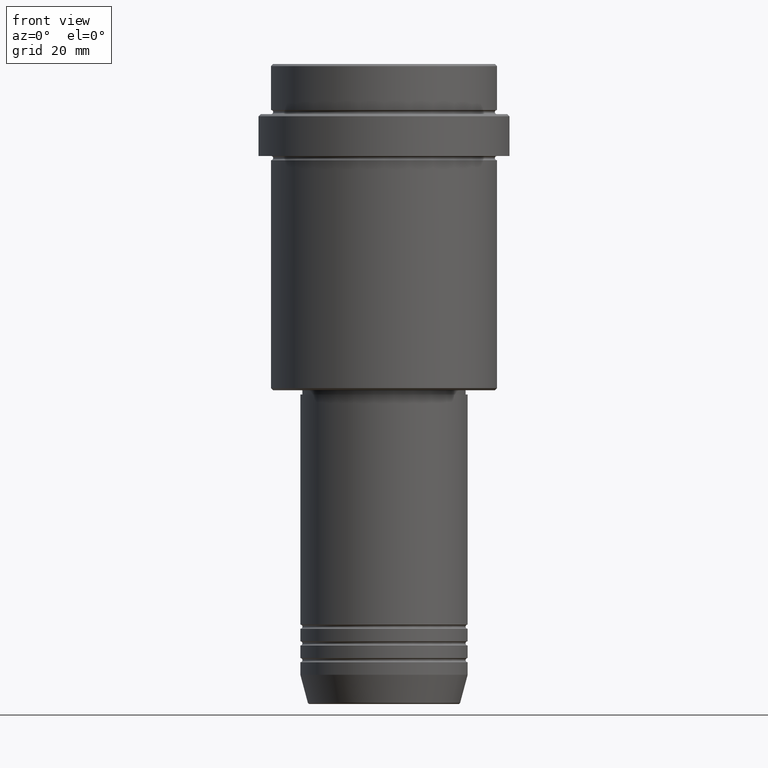
[diagram: clean part render]
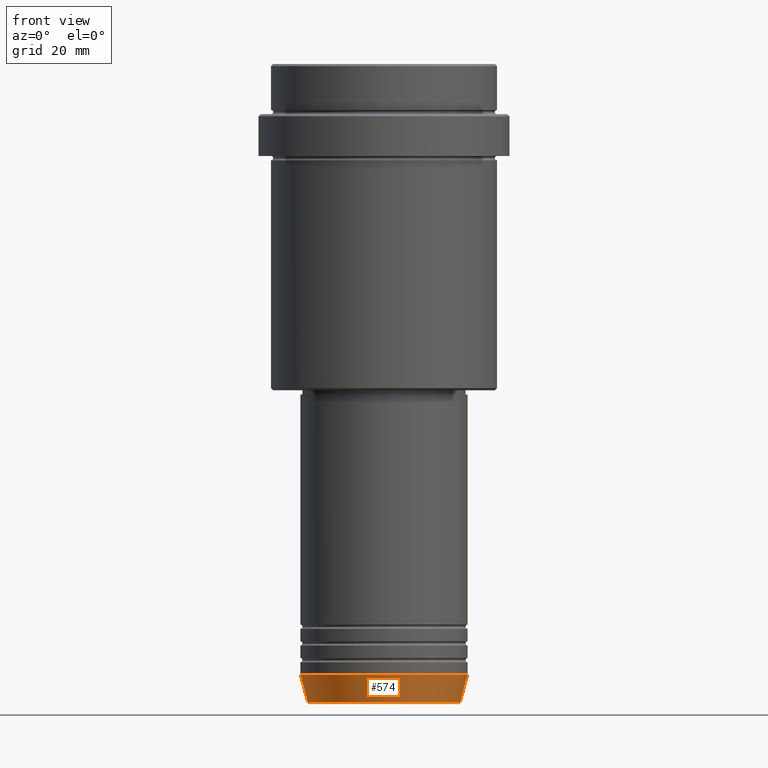
[diagram: same view with one face highlighted and labeled with its STEP entity id]
A machine part, front view. The second image highlights one B-rep face of the part: STEP entity #574.
In plain terms, the highlighted conical surface has half-angle 15 deg.
Its self-contained STEP definition (entity closure, byte-faithful):
#64 = DIRECTION ( 'NONE',  ( 1.000000000000000000, 0.000000000000000000, 0.000000000000000000 ) ) ;
#155 = DIRECTION ( 'NONE',  ( -0.2588190451025213501, 3.169619151431772337E-17, 0.9659258262890680902 ) ) ;
#261 = CIRCLE ( 'NONE', #1204, 20.00000000000000000 ) ;
#304 = CARTESIAN_POINT ( 'NONE',  ( 0.000000000000000000, 0.000000000000000000, -146.0000000000000000 ) ) ;
#392 = CIRCLE ( 'NONE', #778, 18.22365507213719482 ) ;
#403 = CARTESIAN_POINT ( 'NONE',  ( 0.000000000000000000, 0.000000000000000000, -152.6294095225512706 ) ) ;
#475 = CARTESIAN_POINT ( 'NONE',  ( 18.22365507213719482, 0.000000000000000000, -152.6294095225512706 ) ) ;
#509 = EDGE_CURVE ( 'NONE', #600, #802, #392, .T. ) ;
#516 = VECTOR ( 'NONE', #536, 1000.000000000000000 ) ;
#536 = DIRECTION ( 'NONE',  ( 0.2588190451025213501, 0.000000000000000000, 0.9659258262890680902 ) ) ;
#545 = CARTESIAN_POINT ( 'NONE',  ( 0.000000000000000000, 0.000000000000000000, -146.0000000000000000 ) ) ;
#549 = LINE ( 'NONE', #1212, #516 ) ;
#562 = VERTEX_POINT ( 'NONE', #850 ) ;
#574 = ADVANCED_FACE ( 'NONE', ( #953 ), #704, .T. ) ;
#600 = VERTEX_POINT ( 'NONE', #1060 ) ;
#646 = VERTEX_POINT ( 'NONE', #665 ) ;
#665 = CARTESIAN_POINT ( 'NONE',  ( 20.00000000000000000, 0.000000000000000000, -146.0000000000000000 ) ) ;
#699 = CARTESIAN_POINT ( 'NONE',  ( -20.00000000000000000, 2.449293598294706513E-15, -146.0000000000000000 ) ) ;
#700 = EDGE_CURVE ( 'NONE', #562, #646, #261, .T. ) ;
#704 = CONICAL_SURFACE ( 'NONE', #705, 20.00000000000000000, 0.2617993877991500740 ) ;
#705 = AXIS2_PLACEMENT_3D ( 'NONE', #304, #1281, #64 ) ;
#765 = EDGE_CURVE ( 'NONE', #600, #562, #1231, .T. ) ;
#769 = ORIENTED_EDGE ( 'NONE', *, *, #509, .T. ) ;
#778 = AXIS2_PLACEMENT_3D ( 'NONE', #403, #1041, #1300 ) ;
#802 = VERTEX_POINT ( 'NONE', #475 ) ;
#850 = CARTESIAN_POINT ( 'NONE',  ( -20.00000000000000000, 2.449293598294706513E-15, -146.0000000000000000 ) ) ;
#896 = DIRECTION ( 'NONE',  ( 1.000000000000000000, 0.000000000000000000, 0.000000000000000000 ) ) ;
#953 = FACE_OUTER_BOUND ( 'NONE', #1050, .T. ) ;
#1020 = ORIENTED_EDGE ( 'NONE', *, *, #1136, .T. ) ;
#1041 = DIRECTION ( 'NONE',  ( -0.000000000000000000, -0.000000000000000000, 1.000000000000000000 ) ) ;
#1050 = EDGE_LOOP ( 'NONE', ( #1146, #769, #1020, #1114 ) ) ;
#1060 = CARTESIAN_POINT ( 'NONE',  ( -18.22365507213719482, 2.340523841790264718E-15, -152.6294095225512706 ) ) ;
#1114 = ORIENTED_EDGE ( 'NONE', *, *, #700, .F. ) ;
#1136 = EDGE_CURVE ( 'NONE', #802, #646, #549, .T. ) ;
#1146 = ORIENTED_EDGE ( 'NONE', *, *, #765, .F. ) ;
#1204 = AXIS2_PLACEMENT_3D ( 'NONE', #545, #1322, #896 ) ;
#1212 = CARTESIAN_POINT ( 'NONE',  ( 20.00000000000000000, 0.000000000000000000, -146.0000000000000000 ) ) ;
#1230 = VECTOR ( 'NONE', #155, 1000.000000000000000 ) ;
#1231 = LINE ( 'NONE', #699, #1230 ) ;
#1281 = DIRECTION ( 'NONE',  ( -0.000000000000000000, -0.000000000000000000, 1.000000000000000000 ) ) ;
#1300 = DIRECTION ( 'NONE',  ( 1.000000000000000000, 0.000000000000000000, 0.000000000000000000 ) ) ;
#1322 = DIRECTION ( 'NONE',  ( -0.000000000000000000, -0.000000000000000000, 1.000000000000000000 ) ) ;